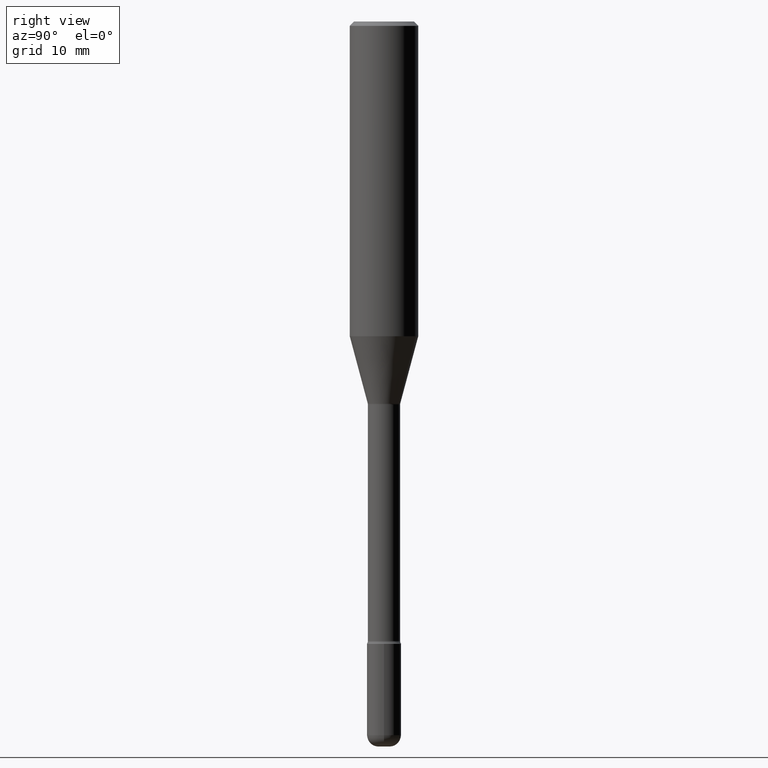
[diagram: clean part render]
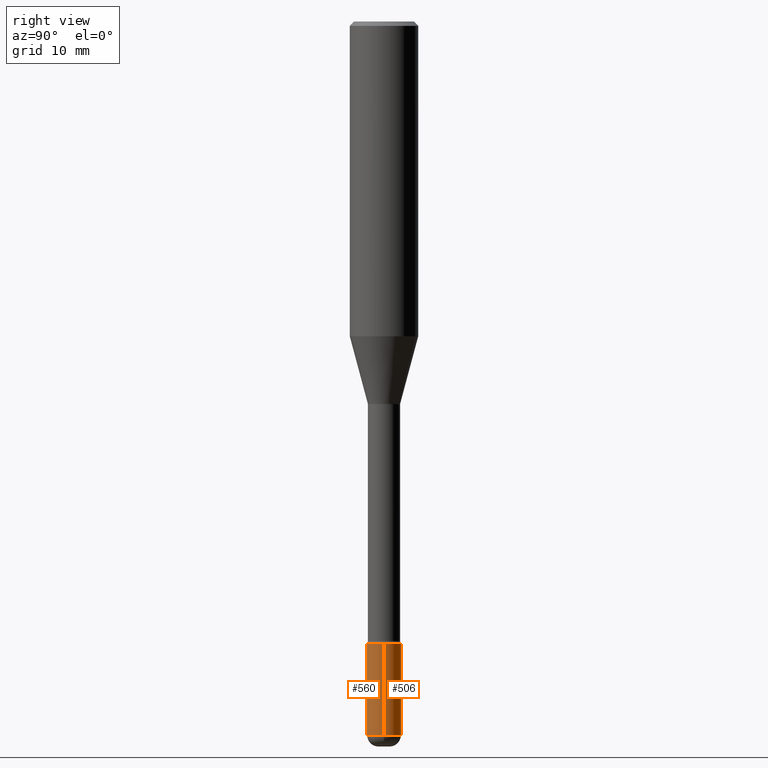
[diagram: same view with one multi-face feature highlighted, each face labeled with its STEP entity id]
A machine part, right view. The highlighted faces form ONE feature: a constant-radius fillet chain: 2 tangent blend faces with common blend radius 1.4999 mm. The faces share edges in the B-rep.
Their STEP definitions:
[1] entity #506 (Cylinder):
#28 = CARTESIAN_POINT ( 'NONE',  ( -0.05904999999999999832, -7.621829760090250701E-15, -2.145700000000000163 ) ) ;
#44 = FACE_OUTER_BOUND ( 'NONE', #187, .T. ) ;
#50 = DIRECTION ( 'NONE',  ( 1.000000000000000000, -6.982962677686256455E-15, 0.000000000000000000 ) ) ;
#61 = CARTESIAN_POINT ( 'NONE',  ( 0.05904999999999999832, -7.904015454873111947E-15, -2.145700000000000163 ) ) ;
#65 = AXIS2_PLACEMENT_3D ( 'NONE', #87, #263, #50 ) ;
#75 = EDGE_CURVE ( 'NONE', #202, #375, #472, .T. ) ;
#83 = CARTESIAN_POINT ( 'NONE',  ( -0.05905000000000003302, -8.171563496891103080E-15, -2.460599999999999898 ) ) ;
#87 = CARTESIAN_POINT ( 'NONE',  ( 6.017320544499146897E-29, -8.591138982357444151E-15, -2.460599999999999898 ) ) ;
#92 = AXIS2_PLACEMENT_3D ( 'NONE', #181, #93, #177 ) ;
#93 = DIRECTION ( 'NONE',  ( -2.445468806185136597E-29, 3.491481338843145583E-15, 1.000000000000000000 ) ) ;
#130 = CYLINDRICAL_SURFACE ( 'NONE', #229, 0.05904999999999999832 ) ;
#135 = DIRECTION ( 'NONE',  ( 1.000000000000000000, -6.982962677686266711E-15, 4.876176775795936353E-29 ) ) ;
#157 = ORIENTED_EDGE ( 'NONE', *, *, #459, .T. ) ;
#177 = DIRECTION ( 'NONE',  ( 1.000000000000000000, -6.982962677686273021E-15, 0.000000000000000000 ) ) ;
#181 = CARTESIAN_POINT ( 'NONE',  ( 5.247242417431447608E-29, -7.491671508755737816E-15, -2.145700000000000163 ) ) ;
#187 = EDGE_LOOP ( 'NONE', ( #192, #157, #327, #532 ) ) ;
#192 = ORIENTED_EDGE ( 'NONE', *, *, #75, .T. ) ;
#202 = VERTEX_POINT ( 'NONE', #373 ) ;
#218 = VERTEX_POINT ( 'NONE', #61 ) ;
#221 = CARTESIAN_POINT ( 'NONE',  ( 0.000000000000000000, 0.000000000000000000, 0.000000000000000000 ) ) ;
#229 = AXIS2_PLACEMENT_3D ( 'NONE', #221, #569, #135 ) ;
#243 = LINE ( 'NONE', #547, #405 ) ;
#260 = VECTOR ( 'NONE', #338, 39.37007874015748143 ) ;
#263 = DIRECTION ( 'NONE',  ( -2.445468806185136597E-29, 3.491481338843145583E-15, 1.000000000000000000 ) ) ;
#301 = EDGE_CURVE ( 'NONE', #202, #218, #243, .T. ) ;
#327 = ORIENTED_EDGE ( 'NONE', *, *, #556, .F. ) ;
#338 = DIRECTION ( 'NONE',  ( -2.445468806185136877E-29, 3.491481338843145188E-15, 1.000000000000000000 ) ) ;
#373 = CARTESIAN_POINT ( 'NONE',  ( 0.05905000000000003302, -9.003482928474816704E-15, -2.460599999999999898 ) ) ;
#375 = VERTEX_POINT ( 'NONE', #83 ) ;
#388 = CARTESIAN_POINT ( 'NONE',  ( -0.05904999999999999832, 4.195754854663391478E-16, -2.904631170795521892E-30 ) ) ;
#391 = VERTEX_POINT ( 'NONE', #28 ) ;
#405 = VECTOR ( 'NONE', #419, 39.37007874015748143 ) ;
#419 = DIRECTION ( 'NONE',  ( -2.445468806185136877E-29, 3.491481338843145188E-15, 1.000000000000000000 ) ) ;
#459 = EDGE_CURVE ( 'NONE', #375, #391, #470, .T. ) ;
#463 = CIRCLE ( 'NONE', #92, 0.05904999999999999832 ) ;
#470 = LINE ( 'NONE', #388, #260 ) ;
#472 = CIRCLE ( 'NONE', #65, 0.05904999999999999832 ) ;
#506 = ADVANCED_FACE ( 'NONE', ( #44 ), #130, .T. ) ;
#532 = ORIENTED_EDGE ( 'NONE', *, *, #301, .F. ) ;
#547 = CARTESIAN_POINT ( 'NONE',  ( 0.05904999999999999832, -4.123439461173740327E-16, 2.879382386107500220E-30 ) ) ;
#556 = EDGE_CURVE ( 'NONE', #218, #391, #463, .T. ) ;
#569 = DIRECTION ( 'NONE',  ( -2.445468806185136597E-29, 3.491481338843145583E-15, 1.000000000000000000 ) ) ;
[2] entity #560 (Cylinder):
#4 = CIRCLE ( 'NONE', #313, 0.05904999999999999832 ) ;
#28 = CARTESIAN_POINT ( 'NONE',  ( -0.05904999999999999832, -7.621829760090250701E-15, -2.145700000000000163 ) ) ;
#33 = CIRCLE ( 'NONE', #348, 0.05904999999999999832 ) ;
#61 = CARTESIAN_POINT ( 'NONE',  ( 0.05904999999999999832, -7.904015454873111947E-15, -2.145700000000000163 ) ) ;
#68 = ORIENTED_EDGE ( 'NONE', *, *, #363, .T. ) ;
#83 = CARTESIAN_POINT ( 'NONE',  ( -0.05905000000000003302, -8.171563496891103080E-15, -2.460599999999999898 ) ) ;
#123 = DIRECTION ( 'NONE',  ( -2.445468806185136597E-29, 3.491481338843145583E-15, 1.000000000000000000 ) ) ;
#132 = CARTESIAN_POINT ( 'NONE',  ( 0.000000000000000000, 0.000000000000000000, 0.000000000000000000 ) ) ;
#145 = DIRECTION ( 'NONE',  ( -2.445468806185136597E-29, 3.491481338843145583E-15, 1.000000000000000000 ) ) ;
#167 = DIRECTION ( 'NONE',  ( 1.000000000000000000, -6.982962677686256455E-15, 0.000000000000000000 ) ) ;
#180 = EDGE_CURVE ( 'NONE', #391, #218, #4, .T. ) ;
#202 = VERTEX_POINT ( 'NONE', #373 ) ;
#216 = AXIS2_PLACEMENT_3D ( 'NONE', #132, #145, #490 ) ;
#218 = VERTEX_POINT ( 'NONE', #61 ) ;
#219 = FACE_OUTER_BOUND ( 'NONE', #505, .T. ) ;
#243 = LINE ( 'NONE', #547, #405 ) ;
#246 = CARTESIAN_POINT ( 'NONE',  ( 5.247242417431447608E-29, -7.491671508755737816E-15, -2.145700000000000163 ) ) ;
#260 = VECTOR ( 'NONE', #338, 39.37007874015748143 ) ;
#280 = DIRECTION ( 'NONE',  ( -2.445468806185136597E-29, 3.491481338843145583E-15, 1.000000000000000000 ) ) ;
#301 = EDGE_CURVE ( 'NONE', #202, #218, #243, .T. ) ;
#313 = AXIS2_PLACEMENT_3D ( 'NONE', #246, #280, #413 ) ;
#337 = ORIENTED_EDGE ( 'NONE', *, *, #180, .F. ) ;
#338 = DIRECTION ( 'NONE',  ( -2.445468806185136877E-29, 3.491481338843145188E-15, 1.000000000000000000 ) ) ;
#348 = AXIS2_PLACEMENT_3D ( 'NONE', #516, #123, #167 ) ;
#363 = EDGE_CURVE ( 'NONE', #375, #202, #33, .T. ) ;
#370 = ORIENTED_EDGE ( 'NONE', *, *, #301, .T. ) ;
#373 = CARTESIAN_POINT ( 'NONE',  ( 0.05905000000000003302, -9.003482928474816704E-15, -2.460599999999999898 ) ) ;
#375 = VERTEX_POINT ( 'NONE', #83 ) ;
#388 = CARTESIAN_POINT ( 'NONE',  ( -0.05904999999999999832, 4.195754854663391478E-16, -2.904631170795521892E-30 ) ) ;
#391 = VERTEX_POINT ( 'NONE', #28 ) ;
#405 = VECTOR ( 'NONE', #419, 39.37007874015748143 ) ;
#413 = DIRECTION ( 'NONE',  ( 1.000000000000000000, -6.982962677686273021E-15, 0.000000000000000000 ) ) ;
#419 = DIRECTION ( 'NONE',  ( -2.445468806185136877E-29, 3.491481338843145188E-15, 1.000000000000000000 ) ) ;
#448 = CYLINDRICAL_SURFACE ( 'NONE', #216, 0.05904999999999999832 ) ;
#459 = EDGE_CURVE ( 'NONE', #375, #391, #470, .T. ) ;
#470 = LINE ( 'NONE', #388, #260 ) ;
#490 = DIRECTION ( 'NONE',  ( 1.000000000000000000, -6.982962677686266711E-15, 4.876176775795936353E-29 ) ) ;
#505 = EDGE_LOOP ( 'NONE', ( #515, #68, #370, #337 ) ) ;
#515 = ORIENTED_EDGE ( 'NONE', *, *, #459, .F. ) ;
#516 = CARTESIAN_POINT ( 'NONE',  ( 6.017320544499146897E-29, -8.591138982357444151E-15, -2.460599999999999898 ) ) ;
#547 = CARTESIAN_POINT ( 'NONE',  ( 0.05904999999999999832, -4.123439461173740327E-16, 2.879382386107500220E-30 ) ) ;
#560 = ADVANCED_FACE ( 'NONE', ( #219 ), #448, .T. ) ;